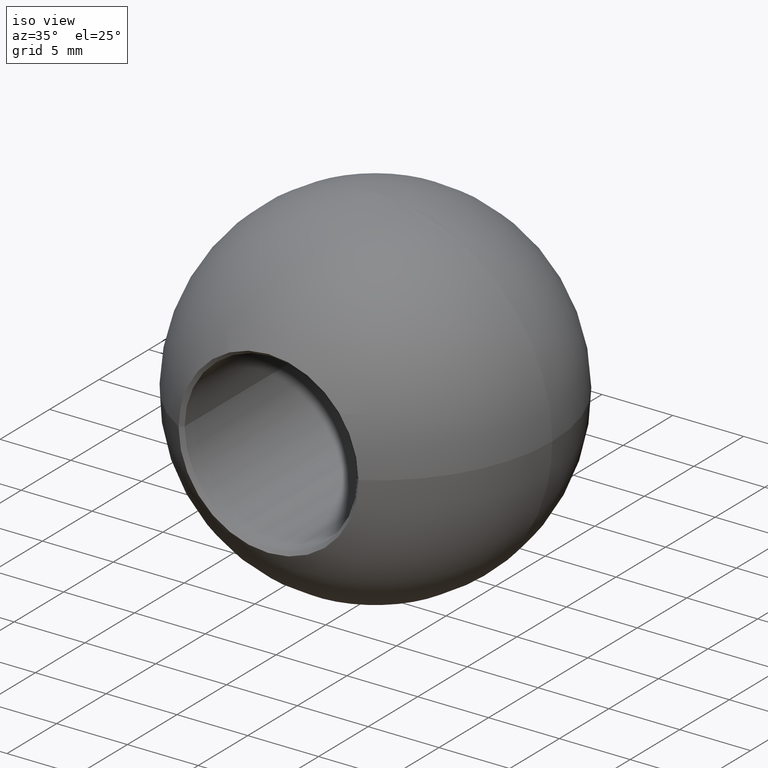
[diagram: clean part render]
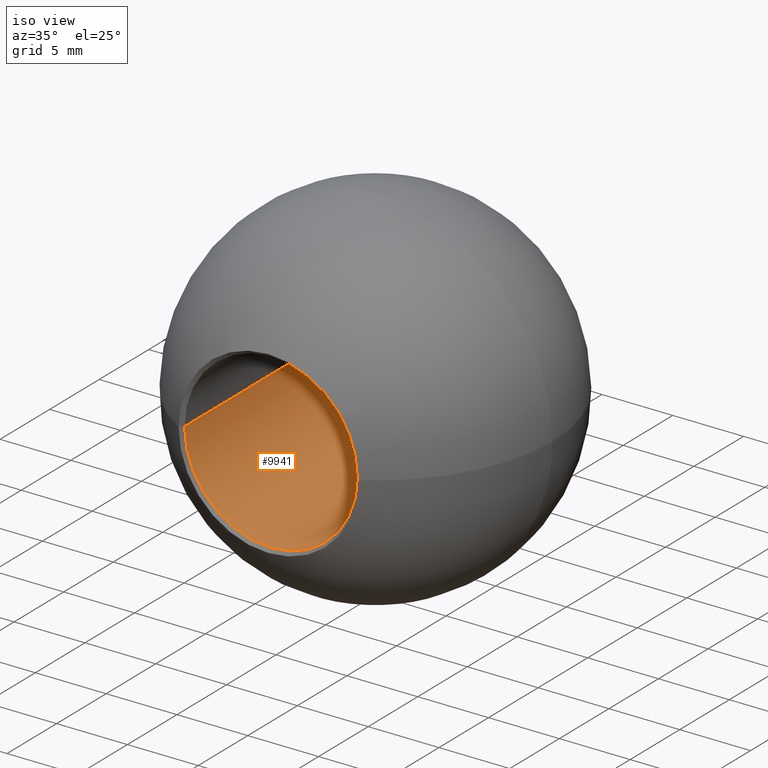
[diagram: same view with one face highlighted and labeled with its STEP entity id]
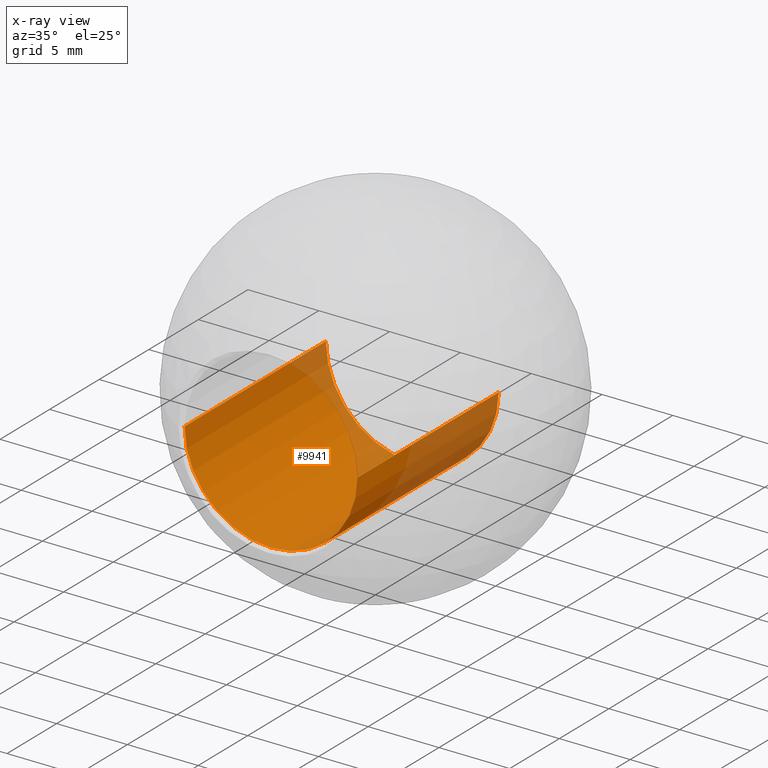
[diagram: x-ray of the same camera — body ghosted, the highlighted face saturated]
A machine part, iso view. The second image highlights one B-rep face of the part: STEP entity #9941.
The next image is the same camera in x-ray: the body ghosted, the highlighted face saturated — about 22% of this face is hidden behind the body in this view.
In plain terms, the highlighted cylindrical surface (partial cylindrical patch) has radius 6.1 mm, axis along (-0, -1, -0).
Its self-contained STEP definition (entity closure, byte-faithful):
#326 = VECTOR ( 'NONE', #4884, 1000.000000000000000 ) ;
#1313 = VECTOR ( 'NONE', #3509, 1000.000000000000000 ) ;
#1878 = CARTESIAN_POINT ( 'NONE',  ( -8.737122991352304000E-018, -10.51696336020513400, 0.0000000000000000000 ) ) ;
#1931 = CIRCLE ( 'NONE', #7061, 6.100000000000001400 ) ;
#2134 = VERTEX_POINT ( 'NONE', #6413 ) ;
#2146 = ORIENTED_EDGE ( 'NONE', *, *, #6762, .T. ) ;
#2372 = AXIS2_PLACEMENT_3D ( 'NONE', #1878, #4565, #8125 ) ;
#2724 = VERTEX_POINT ( 'NONE', #8639 ) ;
#2728 = LINE ( 'NONE', #8862, #1313 ) ;
#3384 = EDGE_CURVE ( 'NONE', #2134, #10976, #1931, .T. ) ;
#3509 = DIRECTION ( 'NONE',  ( -3.795949471969979100E-019, -1.000000000000000000, -0.0000000000000000000 ) ) ;
#3999 = CARTESIAN_POINT ( 'NONE',  ( -6.100000000000002300, 7.398286415862954400, 7.470345474798857300E-016 ) ) ;
#4565 = DIRECTION ( 'NONE',  ( -3.795949471969979100E-019, -1.000000000000000000, -0.0000000000000000000 ) ) ;
#4748 = DIRECTION ( 'NONE',  ( 1.000000000000000000, 0.0000000000000000000, 0.0000000000000000000 ) ) ;
#4884 = DIRECTION ( 'NONE',  ( -3.795949471969979100E-019, -1.000000000000000000, -0.0000000000000000000 ) ) ;
#4958 = FACE_OUTER_BOUND ( 'NONE', #7119, .T. ) ;
#5430 = CARTESIAN_POINT ( 'NONE',  ( 6.100000000000001400, 3.733036639794860000, 0.0000000000000000000 ) ) ;
#5640 = CARTESIAN_POINT ( 'NONE',  ( -3.327894993795085900E-018, 3.733036639794860000, 0.0000000000000000000 ) ) ;
#5798 = CYLINDRICAL_SURFACE ( 'NONE', #8197, 6.100000000000002300 ) ;
#6232 = CIRCLE ( 'NONE', #2372, 6.100000000000003200 ) ;
#6360 = DIRECTION ( 'NONE',  ( 1.000000000000000000, 0.0000000000000000000, 0.0000000000000000000 ) ) ;
#6413 = CARTESIAN_POINT ( 'NONE',  ( -6.100000000000001400, 3.733036639794860000, 7.470345474798856300E-016 ) ) ;
#6762 = EDGE_CURVE ( 'NONE', #9225, #2724, #6232, .T. ) ;
#6864 = CARTESIAN_POINT ( 'NONE',  ( -6.100000000000003200, -10.51696336020513400, 7.623426324692276200E-016 ) ) ;
#6975 = ORIENTED_EDGE ( 'NONE', *, *, #10525, .F. ) ;
#7061 = AXIS2_PLACEMENT_3D ( 'NONE', #5640, #7460, #4748 ) ;
#7119 = EDGE_LOOP ( 'NONE', ( #11157, #11647, #2146, #6975 ) ) ;
#7153 = DIRECTION ( 'NONE',  ( -3.795949471969979100E-019, -1.000000000000000000, -0.0000000000000000000 ) ) ;
#7460 = DIRECTION ( 'NONE',  ( -3.795949471969979100E-019, -1.000000000000000000, -0.0000000000000000000 ) ) ;
#8125 = DIRECTION ( 'NONE',  ( 1.000000000000000000, 0.0000000000000000000, 0.0000000000000000000 ) ) ;
#8197 = AXIS2_PLACEMENT_3D ( 'NONE', #8861, #7153, #6360 ) ;
#8639 = CARTESIAN_POINT ( 'NONE',  ( 6.100000000000003200, -10.51696336020513400, 0.0000000000000000000 ) ) ;
#8861 = CARTESIAN_POINT ( 'NONE',  ( -1.936584698584708900E-018, 7.398286415862954400, 0.0000000000000000000 ) ) ;
#8862 = CARTESIAN_POINT ( 'NONE',  ( 6.100000000000002300, 7.398286415862954400, 0.0000000000000000000 ) ) ;
#9167 = LINE ( 'NONE', #3999, #326 ) ;
#9225 = VERTEX_POINT ( 'NONE', #6864 ) ;
#9628 = EDGE_CURVE ( 'NONE', #2134, #9225, #9167, .T. ) ;
#9941 = ADVANCED_FACE ( 'NONE', ( #4958 ), #5798, .F. ) ;
#10525 = EDGE_CURVE ( 'NONE', #10976, #2724, #2728, .T. ) ;
#10976 = VERTEX_POINT ( 'NONE', #5430 ) ;
#11157 = ORIENTED_EDGE ( 'NONE', *, *, #3384, .F. ) ;
#11647 = ORIENTED_EDGE ( 'NONE', *, *, #9628, .T. ) ;